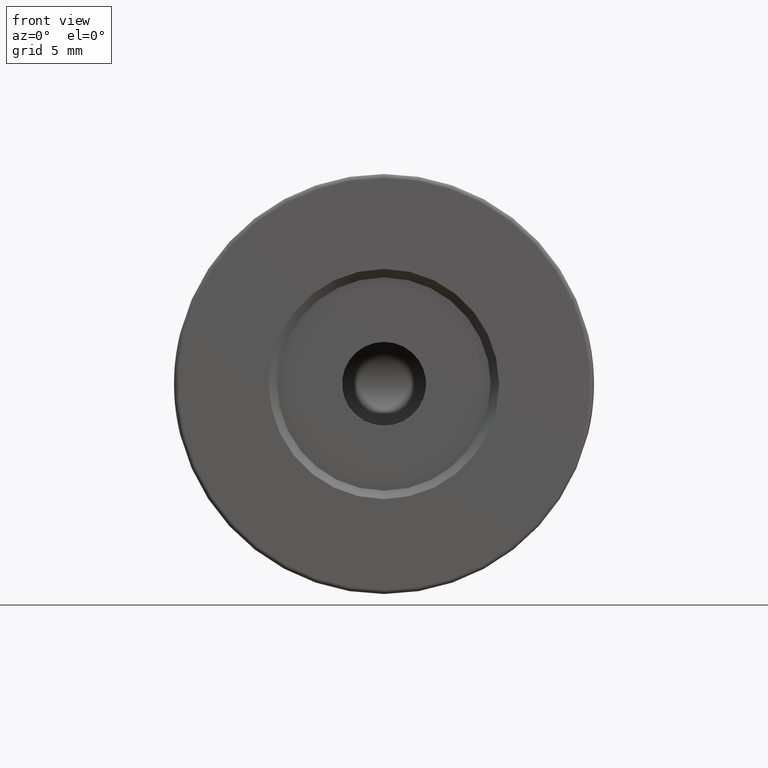
[diagram: clean part render]
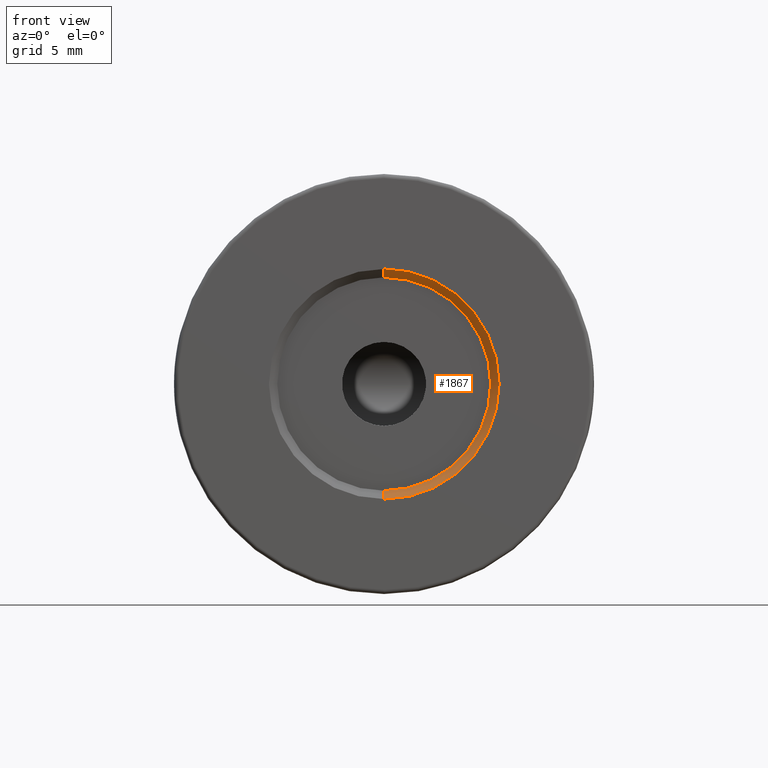
[diagram: same view with one face highlighted and labeled with its STEP entity id]
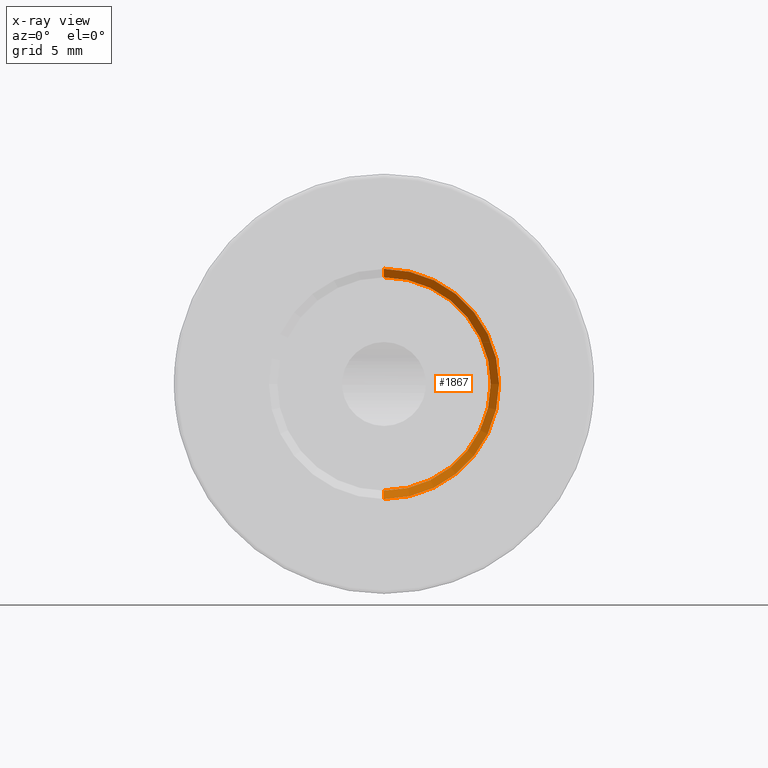
[diagram: x-ray of the same camera — body ghosted, the highlighted face saturated]
A machine part, front view. The second image highlights one B-rep face of the part: STEP entity #1867.
The next image is the same camera in x-ray: the body ghosted, the highlighted face saturated — about 0% of this face is hidden behind the body in this view.
In plain terms, the highlighted conical surface has half-angle 45 deg.
Its self-contained STEP definition (entity closure, byte-faithful):
#53 = DIRECTION ( 'NONE',  ( 0.0000000000000000000, 0.0000000000000000000, -1.000000000000000000 ) ) ;
#92 = VECTOR ( 'NONE', #2921, 1000.000000000000000 ) ;
#316 = AXIS2_PLACEMENT_3D ( 'NONE', #3098, #1783, #2026 ) ;
#373 = VECTOR ( 'NONE', #3070, 1000.000000000000000 ) ;
#446 = CARTESIAN_POINT ( 'NONE',  ( -22.50520183104453409, -10.80174781523061078, 43.64999999999999858 ) ) ;
#548 = CARTESIAN_POINT ( 'NONE',  ( -22.50520183104453409, -11.30174781523061078, 43.14999999999999858 ) ) ;
#939 = CIRCLE ( 'NONE', #316, 6.850000000000002309 ) ;
#1031 = ORIENTED_EDGE ( 'NONE', *, *, #2971, .T. ) ;
#1168 = AXIS2_PLACEMENT_3D ( 'NONE', #3013, #1382, #53 ) ;
#1296 = VERTEX_POINT ( 'NONE', #1316 ) ;
#1316 = CARTESIAN_POINT ( 'NONE',  ( -22.50520183104453409, -11.30174781523061078, 56.85000000000000142 ) ) ;
#1340 = CONICAL_SURFACE ( 'NONE', #1168, 6.850000000000002309, 0.7853981633974500554 ) ;
#1381 = ORIENTED_EDGE ( 'NONE', *, *, #2415, .F. ) ;
#1382 = DIRECTION ( 'NONE',  ( -0.0000000000000000000, -1.000000000000000000, -0.0000000000000000000 ) ) ;
#1524 = CARTESIAN_POINT ( 'NONE',  ( -22.50520183104453409, -11.30174781523061078, 43.14999999999999858 ) ) ;
#1563 = EDGE_CURVE ( 'NONE', #1296, #2170, #939, .T. ) ;
#1671 = VERTEX_POINT ( 'NONE', #446 ) ;
#1752 = CARTESIAN_POINT ( 'NONE',  ( -22.50520183104453409, -10.80174781523061078, 56.35000000000000142 ) ) ;
#1783 = DIRECTION ( 'NONE',  ( 0.0000000000000000000, 1.000000000000000000, 0.0000000000000000000 ) ) ;
#1867 = ADVANCED_FACE ( 'NONE', ( #2225 ), #1340, .F. ) ;
#1928 = DIRECTION ( 'NONE',  ( -0.0000000000000000000, 1.000000000000000000, -0.0000000000000000000 ) ) ;
#1993 = CARTESIAN_POINT ( 'NONE',  ( -22.50520183104453409, -11.30174781523061078, 56.85000000000000142 ) ) ;
#2026 = DIRECTION ( 'NONE',  ( 0.0000000000000000000, 0.0000000000000000000, 1.000000000000000000 ) ) ;
#2084 = CIRCLE ( 'NONE', #2888, 6.350000000000001421 ) ;
#2170 = VERTEX_POINT ( 'NONE', #548 ) ;
#2225 = FACE_OUTER_BOUND ( 'NONE', #2912, .T. ) ;
#2343 = EDGE_CURVE ( 'NONE', #2427, #1671, #2084, .T. ) ;
#2415 = EDGE_CURVE ( 'NONE', #2427, #1296, #2788, .T. ) ;
#2427 = VERTEX_POINT ( 'NONE', #1752 ) ;
#2712 = ORIENTED_EDGE ( 'NONE', *, *, #2343, .T. ) ;
#2739 = CARTESIAN_POINT ( 'NONE',  ( -22.50520183104453409, -10.80174781523061078, 50.00000000000000000 ) ) ;
#2771 = DIRECTION ( 'NONE',  ( 0.0000000000000000000, 0.0000000000000000000, 1.000000000000000000 ) ) ;
#2788 = LINE ( 'NONE', #1993, #373 ) ;
#2888 = AXIS2_PLACEMENT_3D ( 'NONE', #2739, #1928, #2771 ) ;
#2912 = EDGE_LOOP ( 'NONE', ( #1381, #2712, #1031, #2966 ) ) ;
#2921 = DIRECTION ( 'NONE',  ( 0.0000000000000000000, -0.7071067811865463515, -0.7071067811865487940 ) ) ;
#2966 = ORIENTED_EDGE ( 'NONE', *, *, #1563, .F. ) ;
#2971 = EDGE_CURVE ( 'NONE', #1671, #2170, #3186, .T. ) ;
#3013 = CARTESIAN_POINT ( 'NONE',  ( -22.50520183104453409, -11.30174781523061078, 50.00000000000000000 ) ) ;
#3070 = DIRECTION ( 'NONE',  ( 8.659560562354948882E-17, -0.7071067811865463515, 0.7071067811865487940 ) ) ;
#3098 = CARTESIAN_POINT ( 'NONE',  ( -22.50520183104453409, -11.30174781523061078, 50.00000000000000000 ) ) ;
#3186 = LINE ( 'NONE', #1524, #92 ) ;